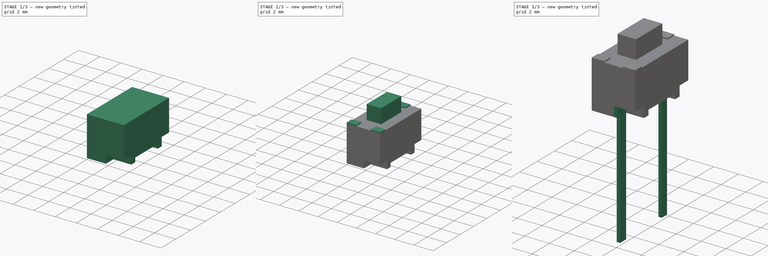
[diagram: build sequence overview — one tinted view per stage of 3, left to right]
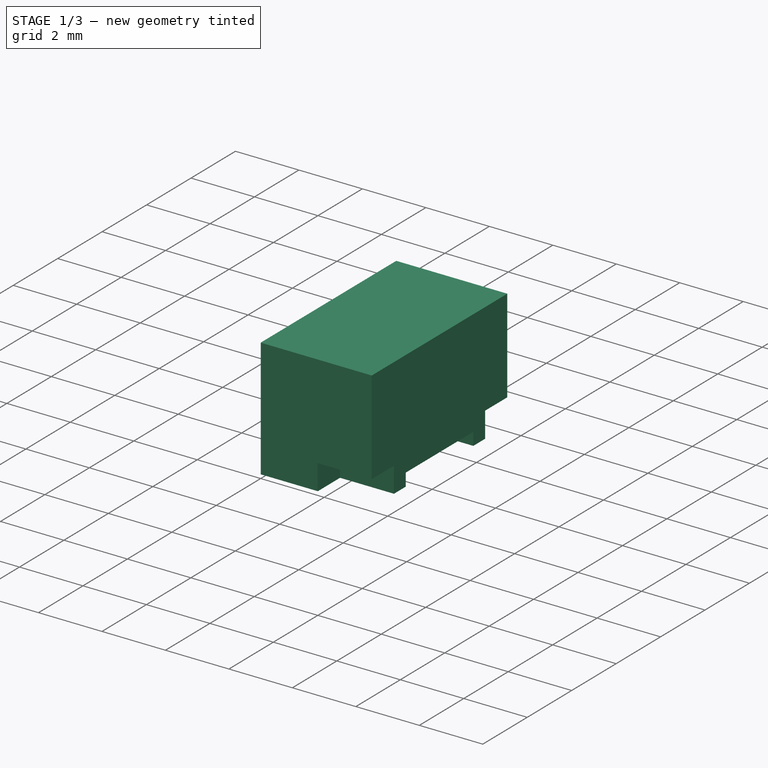
[diagram: stage 1 of 3 — iso view after this stage's code; geometry added in this stage tinted green]
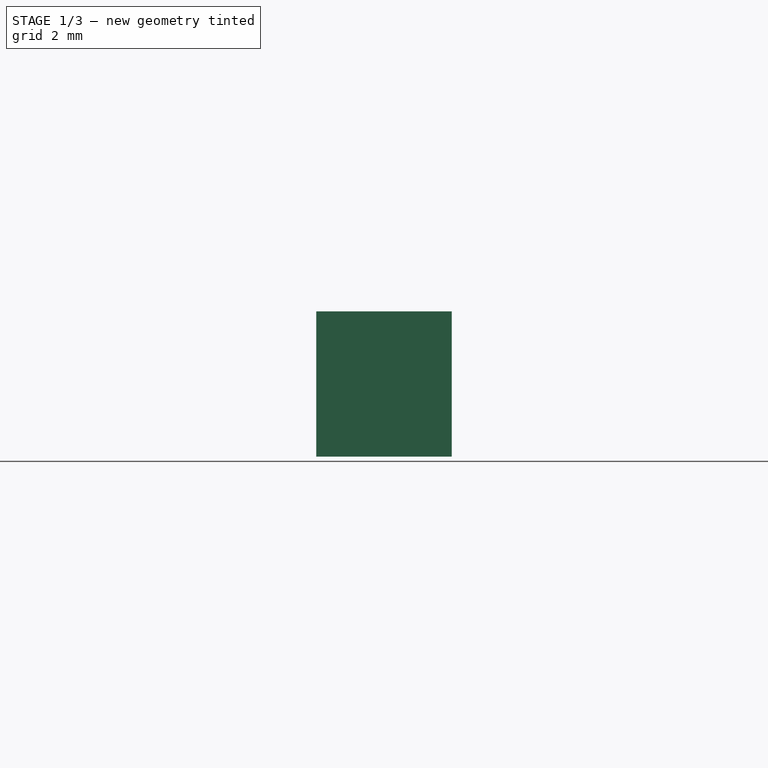
[diagram: stage 1 of 3 — front view after this stage's code; geometry added in this stage tinted green]
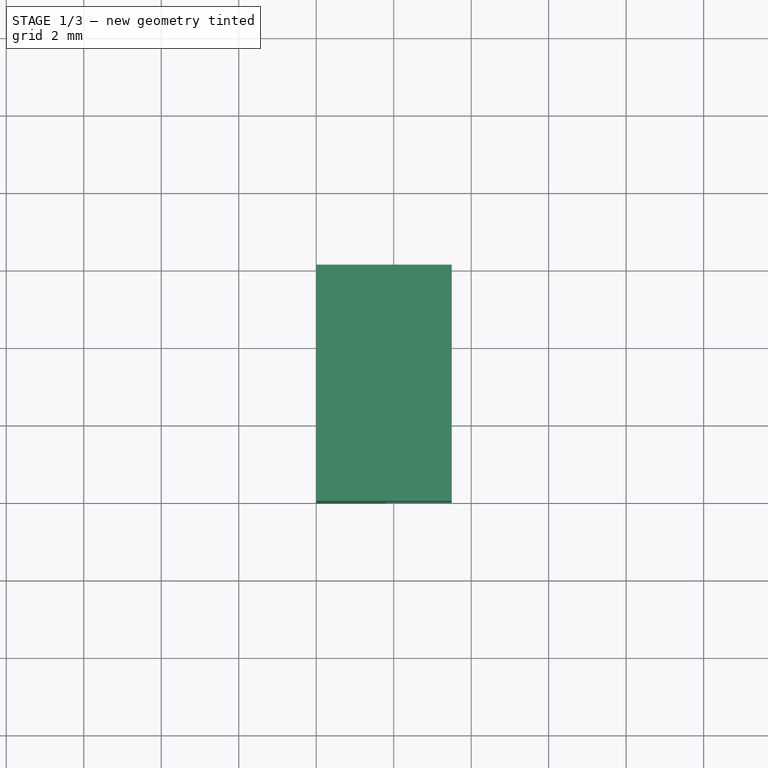
[diagram: stage 1 of 3 — top view after this stage's code; geometry added in this stage tinted green]
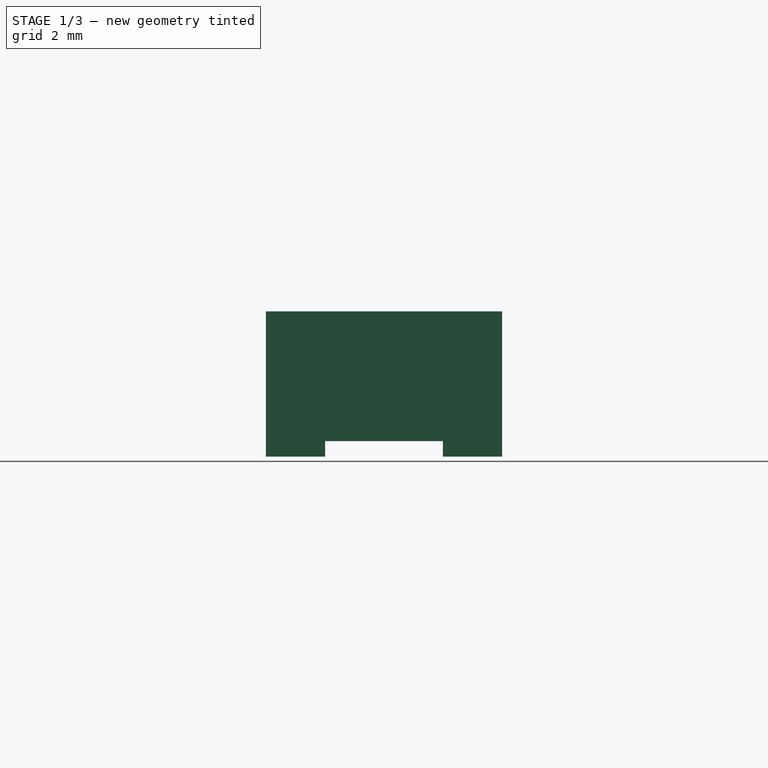
[diagram: stage 1 of 3 — right view after this stage's code; geometry added in this stage tinted green]
FCSTD DOCUMENT  (FreeCAD 0.16R6612 (Git))
Label: button_2
License: All rights reserved
LicenseURL: http://en.wikipedia.org/wiki/All_rights_reserved
objects: Sketcher::SketchObject×8, PartDesign::Pad×4, PartDesign::Pocket×4, Part::Feature×1
note: 25 computed .brp shape members not serialized (recipe doc carries the construction recipe); baked Part::Feature solids carry a one-line shape summary decoded from their .brp

FEATURE [Sketcher::SketchObject] Sketch
  sketch-geometry (4):
    g0: LineSegment StartX=0 StartY=0 StartZ=0 EndX=3.5 EndY=0 EndZ=0
    g1: LineSegment StartX=3.5 StartY=0 StartZ=0 EndX=3.5 EndY=6.1 EndZ=0
    g2: LineSegment StartX=3.5 StartY=6.1 StartZ=0 EndX=0 EndY=6.1 EndZ=0
    g3: LineSegment StartX=0 StartY=6.1 StartZ=0 EndX=0 EndY=0 EndZ=0
  constraints (11):
    c: Coincident(g0,g1)
    c: Coincident(g1,g2)
    c: Coincident(g2,g3)
    c: Coincident(g3,g0)
    c: Horizontal(g0)
    c: Horizontal(g2)
    c: Vertical(g1)
    c: Vertical(g3)
    c: Coincident(g0,g-1)
    c: DistanceX(g2,g2) = 3.5
    c: DistanceY(g1,g1) = 6.1
FEATURE [PartDesign::Pad] Pad
  Length = 3.75
  Length2 = 100
  Sketch = -> Sketch
  Type = 0
FEATURE [Sketcher::SketchObject] Sketch001
  ExternalGeometry = -> [Pad]
  Placement = pos=(3.5,0,0) rot=(0.57735,0.57735,0.57735;2.0944rad)
  Support = -> Pad [Face2]
  sketch-geometry (8):
    g0: LineSegment StartX=0 StartY=0 StartZ=0 EndX=1 EndY=0 EndZ=0
    g1: LineSegment StartX=1 StartY=0 StartZ=0 EndX=1 EndY=0.8 EndZ=0
    g2: LineSegment StartX=1 StartY=0.8 StartZ=0 EndX=0 EndY=0.8 EndZ=0
    g3: LineSegment StartX=0 StartY=0.8 StartZ=0 EndX=0 EndY=0 EndZ=0
    g4: LineSegment StartX=6.1 StartY=0 StartZ=0 EndX=5.1 EndY=0 EndZ=0
    g5: LineSegment StartX=5.1 StartY=0 StartZ=0 EndX=5.1 EndY=0.8 EndZ=0
    g6: LineSegment StartX=5.1 StartY=0.8 StartZ=0 EndX=6.1 EndY=0.8 EndZ=0
    g7: LineSegment StartX=6.1 StartY=0.8 StartZ=0 EndX=6.1 EndY=0 EndZ=0
  constraints (22):
    c: Coincident(g0,g1)
    c: Coincident(g1,g2)
    c: Coincident(g2,g3)
    c: Coincident(g3,g0)
    c: Horizontal(g0)
    c: Horizontal(g2)
    c: Vertical(g1)
    c: Vertical(g3)
    c: Coincident(g4,g5)
    c: Coincident(g5,g6)
    c: Coincident(g6,g7)
    c: Coincident(g7,g4)
    c: Horizontal(g4)
    c: Horizontal(g6)
    c: Vertical(g5)
    c: Vertical(g7)
    c: Coincident(g4,g-3)
    c: DistanceX(g2,g2) = 1
    c: Coincident(g0,g-1)
    c: DistanceX(g6,g6) = 1
    c: DistanceY(g1,g1) = 0.8
    c: DistanceY(g5,g5) = 0.8
FEATURE [PartDesign::Pocket] Pocket
  Length = 1.7
  Sketch = -> Sketch001
  Type = 0
FEATURE [Sketcher::SketchObject] Sketch002
  ExternalGeometry = -> [Pocket]
  Placement = pos=(0,0,0) rot=(1,0,0;3.14159rad)
  Support = -> Pocket [Face2]
  sketch-geometry (6):
    g0: LineSegment StartX=0 StartY=-1.52985 StartZ=0 EndX=3.5 EndY=-1.52985 EndZ=0
    g1: LineSegment StartX=3.5 StartY=-1.52985 StartZ=0 EndX=3.5 EndY=-4.57015 EndZ=0
    g2: LineSegment StartX=3.5 StartY=-4.57015 StartZ=0 EndX=0 EndY=-4.57015 EndZ=0
    g3: LineSegment StartX=0 StartY=-4.57015 StartZ=0 EndX=0 EndY=-1.52985 EndZ=0
    g4: LineSegment [constr] StartX=3.5 StartY=-1.52985 StartZ=0 EndX=3.5 EndY=-1 EndZ=0
    g5: LineSegment [constr] StartX=3.5 StartY=-4.57015 StartZ=0 EndX=3.5 EndY=-5.1 EndZ=0
  constraints (15):
    c: Coincident(g0,g1)
    c: Coincident(g1,g2)
    c: Coincident(g2,g3)
    c: Coincident(g3,g0)
    c: Horizontal(g0)
    c: Horizontal(g2)
    c: Vertical(g1)
    c: Vertical(g3)
    c: PointOnObject(g0,g-2)
    c: PointOnObject(g1,g-3)
    c: Coincident(g4,g0)
    c: Coincident(g4,g-3)
    c: Coincident(g5,g1)
    c: Coincident(g5,g-3)
    c: Equal(g4,g5)
FEATURE [PartDesign::Pocket] Pocket001
  Length = 0.4
  Sketch = -> Sketch002
  Type = 0
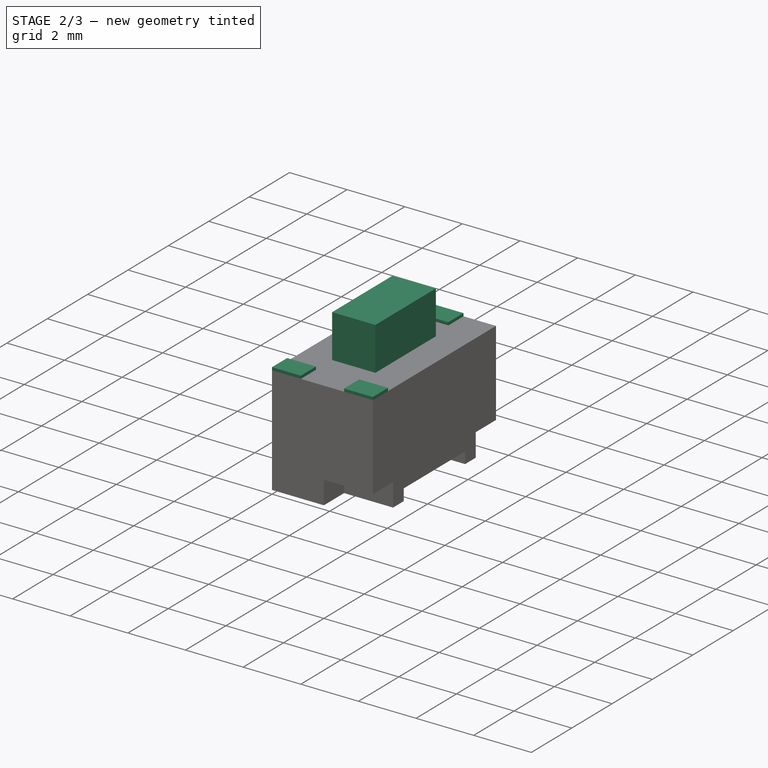
[diagram: stage 2 of 3 — iso view after this stage's code; geometry added in this stage tinted green]
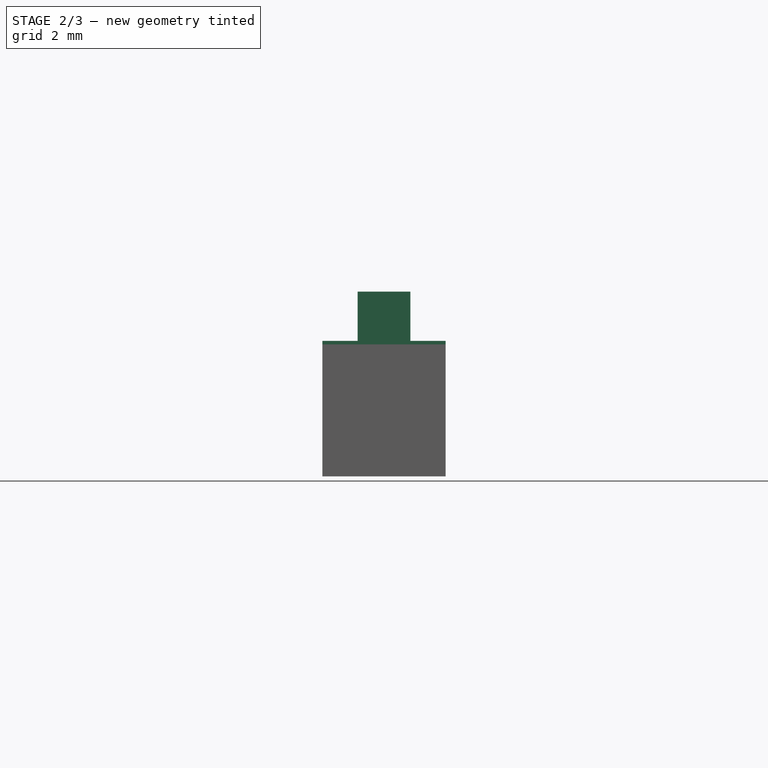
[diagram: stage 2 of 3 — front view after this stage's code; geometry added in this stage tinted green]
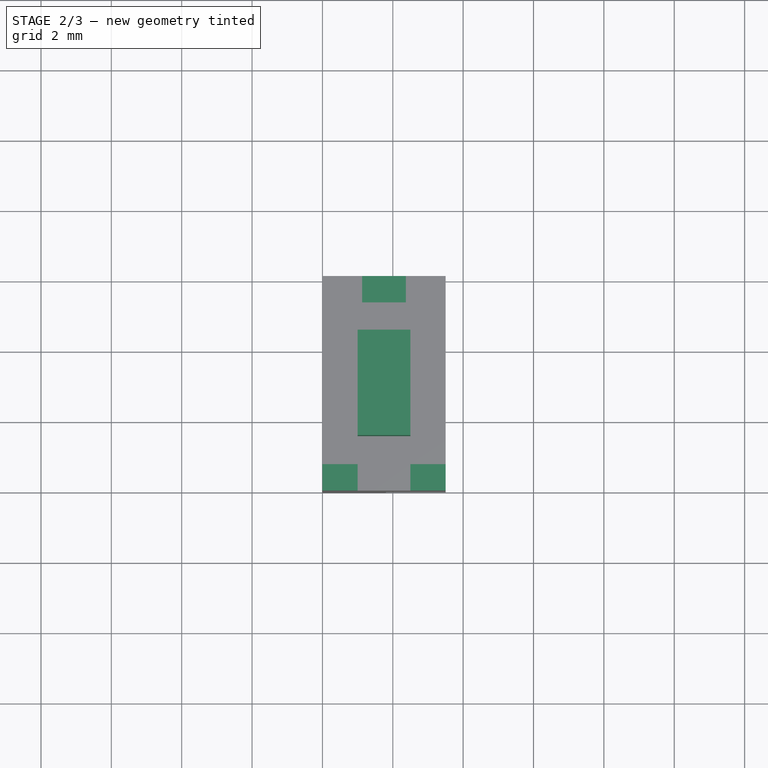
[diagram: stage 2 of 3 — top view after this stage's code; geometry added in this stage tinted green]
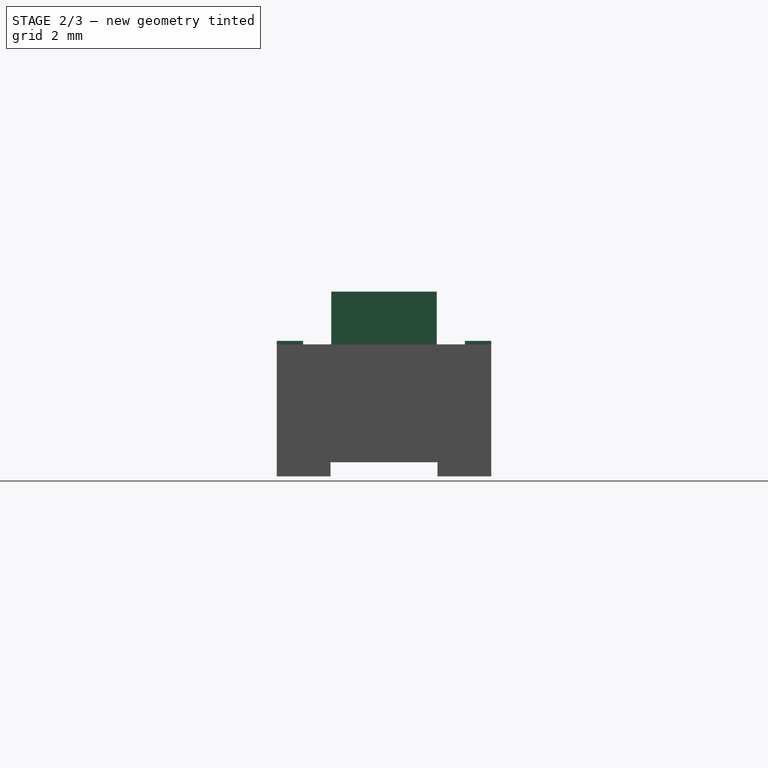
[diagram: stage 2 of 3 — right view after this stage's code; geometry added in this stage tinted green]
FEATURE [Sketcher::SketchObject] Sketch003
  ExternalGeometry = -> [Pocket001]
  Placement = pos=(0,0,3.75) rot=(0,0,1;0rad)
  Support = -> Pocket001 [Face6]
  sketch-geometry (14):
    g0: LineSegment StartX=1.12924 StartY=6.1 StartZ=0 EndX=2.37076 EndY=6.1 EndZ=0
    g1: LineSegment StartX=2.37076 StartY=6.1 StartZ=0 EndX=2.37076 EndY=5.35 EndZ=0
    g2: LineSegment StartX=2.37076 StartY=5.35 StartZ=0 EndX=1.12924 EndY=5.35 EndZ=0
    g3: LineSegment StartX=1.12924 StartY=5.35 StartZ=0 EndX=1.12924 EndY=6.1 EndZ=0
    g4: LineSegment StartX=0 StartY=0 StartZ=0 EndX=1 EndY=0 EndZ=0
    g5: LineSegment StartX=1 StartY=0 StartZ=0 EndX=1 EndY=0.75 EndZ=0
    g6: LineSegment StartX=1 StartY=0.75 StartZ=0 EndX=0 EndY=0.75 EndZ=0
    g7: LineSegment StartX=0 StartY=0.75 StartZ=0 EndX=0 EndY=0 EndZ=0
    g8: LineSegment StartX=3.5 StartY=0 StartZ=0 EndX=2.5 EndY=0 EndZ=0
    g9: LineSegment StartX=2.5 StartY=0 StartZ=0 EndX=2.5 EndY=0.75 EndZ=0
    g10: LineSegment StartX=2.5 StartY=0.75 StartZ=0 EndX=3.5 EndY=0.75 EndZ=0
    g11: LineSegment StartX=3.5 StartY=0.75 StartZ=0 EndX=3.5 EndY=0 EndZ=0
    g12: LineSegment [constr] StartX=0 StartY=6.1 StartZ=0 EndX=1.12924 EndY=6.1 EndZ=0
    g13: LineSegment [constr] StartX=3.5 StartY=6.1 StartZ=0 EndX=2.37076 EndY=6.1 EndZ=0
  constraints (39):
    c: Coincident(g0,g1)
    c: Coincident(g1,g2)
    c: Coincident(g2,g3)
    c: Coincident(g3,g0)
    c: Horizontal(g0)
    c: Horizontal(g2)
    c: Vertical(g1)
    c: Vertical(g3)
    c: PointOnObject(g0,g-3)
    c: Coincident(g4,g5)
    c: Coincident(g5,g6)
    c: Coincident(g6,g7)
    c: Coincident(g7,g4)
    c: Horizontal(g4)
    c: Horizontal(g6)
    c: Vertical(g5)
    c: Vertical(g7)
    c: Coincident(g4,g-1)
    c: Coincident(g8,g9)
    c: Coincident(g9,g10)
    c: Coincident(g10,g11)
    c: Coincident(g11,g8)
    c: Horizontal(g8)
    c: Horizontal(g10)
    c: Vertical(g9)
    c: Vertical(g11)
    c: Coincident(g8,g-4)
    c: Equal(g10,g6)
    c: Equal(g5,g9)
    c: DistanceX(g10,g10) = 1
    c: DistanceY(g9,g9) = 0.75
    c: DistanceY(g1,g1) = 0.75
    c: Coincident(g12,g-3)
    c: Coincident(g12,g0)
    c: Horizontal(g12)
    c: Coincident(g13,g-3)
    c: Horizontal(g13)
    c: Equal(g12,g13)
    c: Coincident(g0,g13)
FEATURE [PartDesign::Pad] Pad001
  Length = 0.1
  Length2 = 100
  Sketch = -> Sketch003
  Type = 0
FEATURE [Sketcher::SketchObject] Sketch004
  ExternalGeometry = -> [Pad001]
  Placement = pos=(0,0,3.75) rot=(0,0,1;0rad)
  Support = -> Pad001 [Face10]
  sketch-geometry (10):
    g0: LineSegment StartX=1 StartY=4.55 StartZ=0 EndX=2.5 EndY=4.55 EndZ=0
    g1: LineSegment StartX=2.5 StartY=4.55 StartZ=0 EndX=2.5 EndY=1.55 EndZ=0
    g2: LineSegment StartX=2.5 StartY=1.55 StartZ=0 EndX=1 EndY=1.55 EndZ=0
    g3: LineSegment StartX=1 StartY=1.55 StartZ=0 EndX=1 EndY=4.55 EndZ=0
    g4: GeomPoint [constr] X=1.75 Y=6.1 Z=0
    g5: GeomPoint [constr] X=1.75 Y=4.55 Z=0
    g6: LineSegment [constr] StartX=1.75 StartY=6.1 StartZ=0 EndX=1.75 EndY=4.55 EndZ=0
    g7: GeomPoint [constr] X=2.5 Y=3.05 Z=0
    g8: GeomPoint [constr] X=0 Y=3.05 Z=0
    g9: LineSegment [constr] StartX=0 StartY=3.05 StartZ=0 EndX=2.5 EndY=3.05 EndZ=0
  constraints (20):
    c: Coincident(g0,g1)
    c: Coincident(g1,g2)
    c: Coincident(g2,g3)
    c: Coincident(g3,g0)
    c: Horizontal(g0)
    c: Horizontal(g2)
    c: Vertical(g1)
    c: Vertical(g3)
    c: DistanceX(g0,g0) = 1.5
    c: DistanceY(g1,g1) = 3
    c: Symmetric(g-3,g-3,g4)
    c: Symmetric(g0,g0,g5)
    c: Coincident(g6,g4)
    c: Coincident(g6,g5)
    c: Vertical(g6)
    c: Symmetric(g0,g1,g7)
    c: Symmetric(g-1,g-5,g8)
    c: Coincident(g9,g8)
    c: Coincident(g9,g7)
    c: Horizontal(g9)
FEATURE [PartDesign::Pad] Pad002
  Length = 1.5
  Length2 = 100
  Sketch = -> Sketch004
  Type = 0
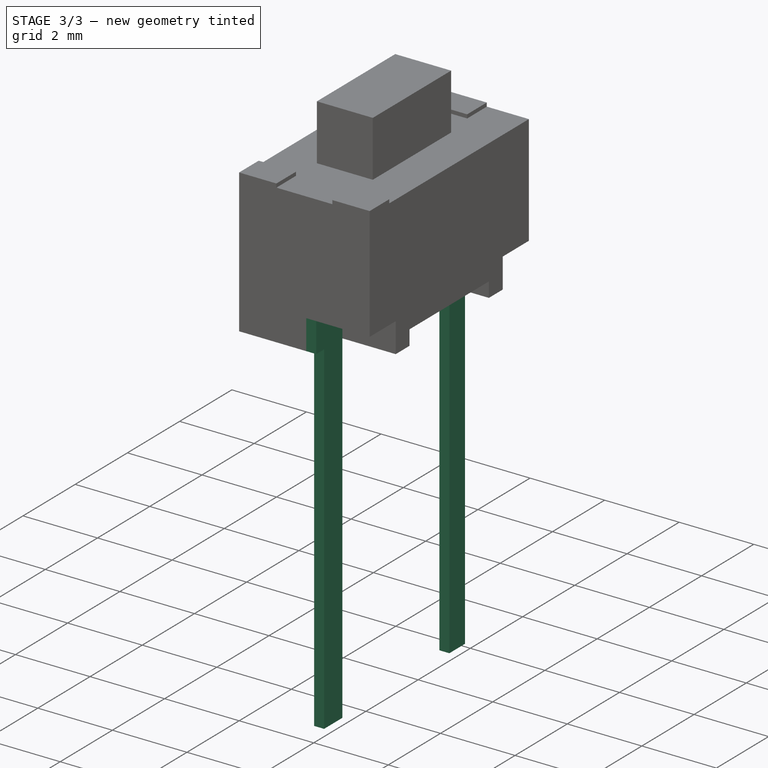
[diagram: stage 3 of 3 — iso view after this stage's code; geometry added in this stage tinted green]
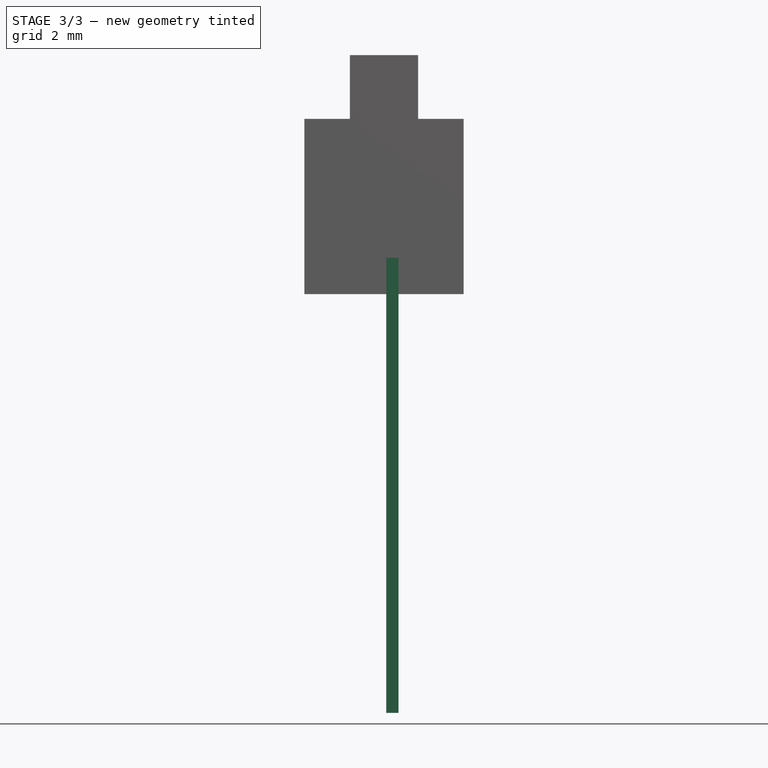
[diagram: stage 3 of 3 — front view after this stage's code; geometry added in this stage tinted green]
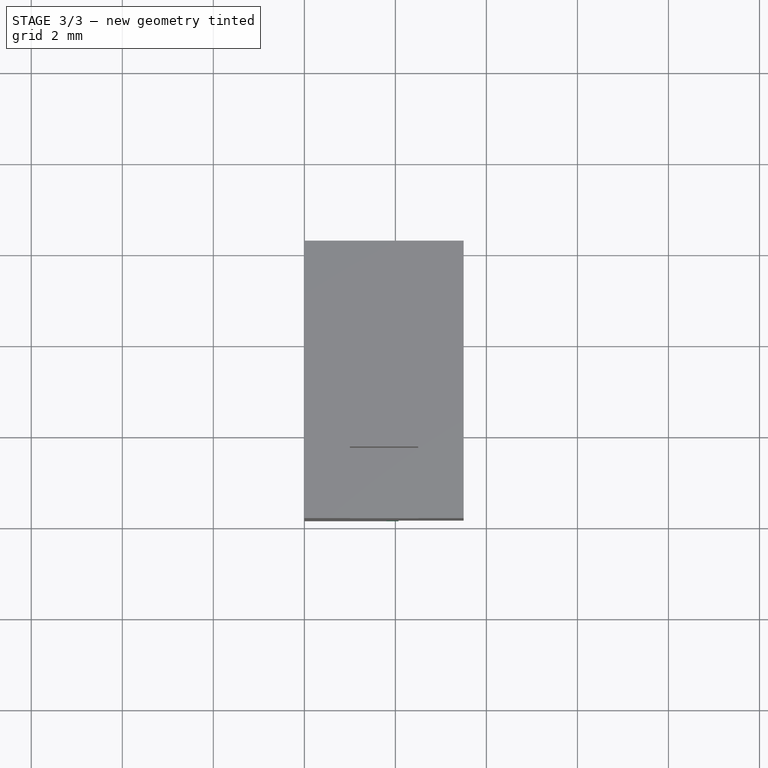
[diagram: stage 3 of 3 — top view after this stage's code; geometry added in this stage tinted green]
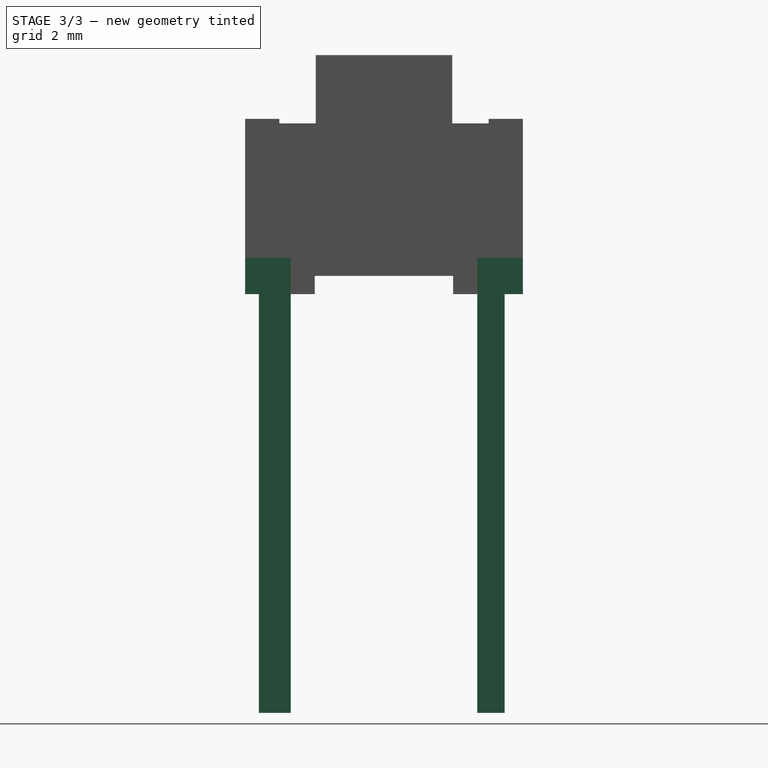
[diagram: stage 3 of 3 — right view after this stage's code; geometry added in this stage tinted green]
FEATURE [Sketcher::SketchObject] Sketch005
  ExternalGeometry = -> [Pad002]
  Placement = pos=(0,0,0.8) rot=(1,0,0;3.14159rad)
  Support = -> Pad002 [Face9]
  sketch-geometry (8):
    g0: LineSegment StartX=1.8 StartY=0 StartZ=0 EndX=2.06813 EndY=0 EndZ=0
    g1: LineSegment StartX=2.06813 StartY=0 StartZ=0 EndX=2.06813 EndY=-1 EndZ=0
    g2: LineSegment StartX=2.06813 StartY=-1 StartZ=0 EndX=1.8 EndY=-1 EndZ=0
    g3: LineSegment StartX=1.8 StartY=-1 StartZ=0 EndX=1.8 EndY=0 EndZ=0
    g4: LineSegment StartX=1.8 StartY=-6.1 StartZ=0 EndX=2.06813 EndY=-6.1 EndZ=0
    g5: LineSegment StartX=2.06813 StartY=-6.1 StartZ=0 EndX=2.06813 EndY=-5.1 EndZ=0
    g6: LineSegment StartX=2.06813 StartY=-5.1 StartZ=0 EndX=1.8 EndY=-5.1 EndZ=0
    g7: LineSegment StartX=1.8 StartY=-5.1 StartZ=0 EndX=1.8 EndY=-6.1 EndZ=0
  constraints (21):
    c: Coincident(g0,g1)
    c: Coincident(g1,g2)
    c: Coincident(g2,g3)
    c: Coincident(g3,g0)
    c: Horizontal(g0)
    c: Horizontal(g2)
    c: Vertical(g1)
    c: Vertical(g3)
    c: Coincident(g0,g-3)
    c: PointOnObject(g1,g-6)
    c: Coincident(g4,g5)
    c: Coincident(g5,g6)
    c: Coincident(g6,g7)
    c: Coincident(g7,g4)
    c: Horizontal(g4)
    c: Horizontal(g6)
    c: Vertical(g5)
    c: Vertical(g7)
    c: Coincident(g4,g-4)
    c: PointOnObject(g5,g-5)
    c: Equal(g0,g4)
FEATURE [PartDesign::Pad] Pad003
  Length = 10
  Length2 = 100
  Sketch = -> Sketch005
  Type = 0
FEATURE [Sketcher::SketchObject] Sketch006
  ExternalGeometry = -> [Pad003]
  Placement = pos=(0,0,0) rot=(1,0,0;1.5708rad)
  Support = -> Pad003 [Face31]
  sketch-geometry (4):
    g0: LineSegment StartX=1.8 StartY=0 StartZ=0 EndX=2.06813 EndY=0 EndZ=0
    g1: LineSegment StartX=2.06813 StartY=0 StartZ=0 EndX=2.06813 EndY=-9.2 EndZ=0
    g2: LineSegment StartX=2.06813 StartY=-9.2 StartZ=0 EndX=1.8 EndY=-9.2 EndZ=0
    g3: LineSegment StartX=1.8 StartY=-9.2 StartZ=0 EndX=1.8 EndY=0 EndZ=0
  constraints (10):
    c: Coincident(g0,g1)
    c: Coincident(g1,g2)
    c: Coincident(g2,g3)
    c: Coincident(g3,g0)
    c: Horizontal(g0)
    c: Horizontal(g2)
    c: Vertical(g1)
    c: Vertical(g3)
    c: Coincident(g0,g-3)
    c: Coincident(g1,g-4)
FEATURE [PartDesign::Pocket] Pocket002
  Length = 0.3
  Sketch = -> Sketch006
  Type = 0
FEATURE [Sketcher::SketchObject] Sketch007
  ExternalGeometry = -> [Pocket002]
  Placement = pos=(0,6.1,0) rot=(0,0.707107,0.707107;3.14159rad)
  Support = -> Pocket002 [Face16]
  sketch-geometry (4):
    g0: LineSegment StartX=-1.8 StartY=0 StartZ=0 EndX=-2.06813 EndY=0 EndZ=0
    g1: LineSegment StartX=-2.06813 StartY=0 StartZ=0 EndX=-2.06813 EndY=-9.2 EndZ=0
    g2: LineSegment StartX=-2.06813 StartY=-9.2 StartZ=0 EndX=-1.8 EndY=-9.2 EndZ=0
    g3: LineSegment StartX=-1.8 StartY=-9.2 StartZ=0 EndX=-1.8 EndY=0 EndZ=0
  constraints (10):
    c: Coincident(g0,g1)
    c: Coincident(g1,g2)
    c: Coincident(g2,g3)
    c: Coincident(g3,g0)
    c: Horizontal(g0)
    c: Horizontal(g2)
    c: Vertical(g1)
    c: Vertical(g3)
    c: Coincident(g0,g-3)
    c: Coincident(g1,g-4)
FEATURE [PartDesign::Pocket] Pocket003
  Length = 0.4
  Sketch = -> Sketch007
  Type = 0
FEATURE [Part::Feature] Pocket003001  label="button_rect"
  shape: bbox 3.5 x 6.1 x 14.45 mm, 48 faces (baked)
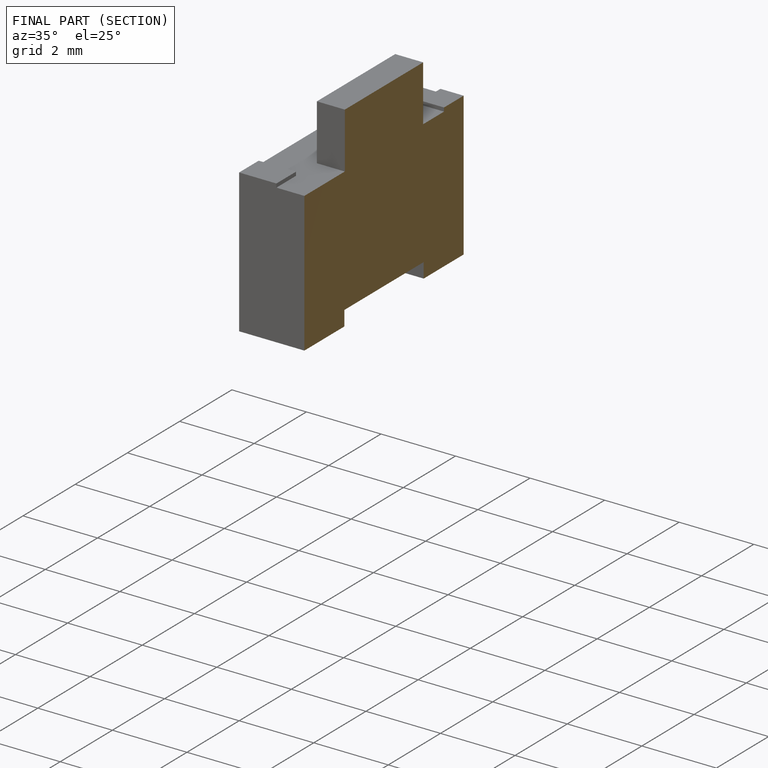
[diagram: finished part — half-section view (interior)]
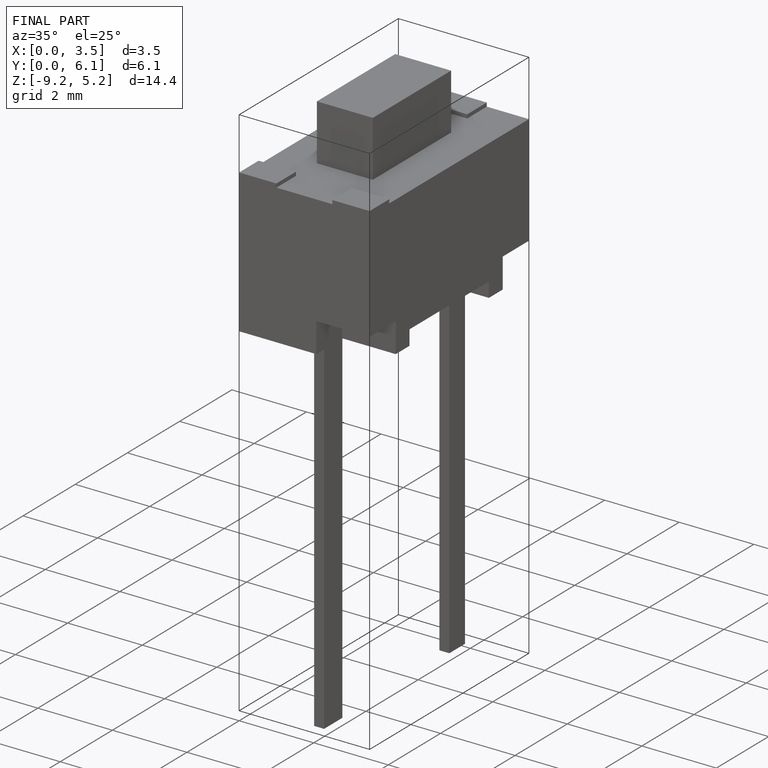
[diagram: finished part — iso view with bounding-box wireframe]
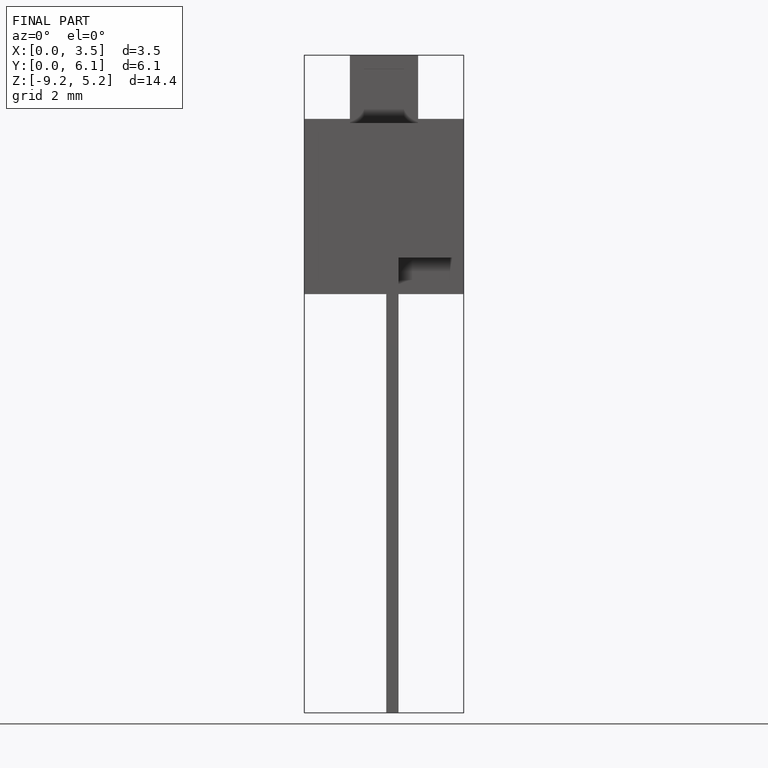
[diagram: finished part — front view with bounding-box wireframe]
